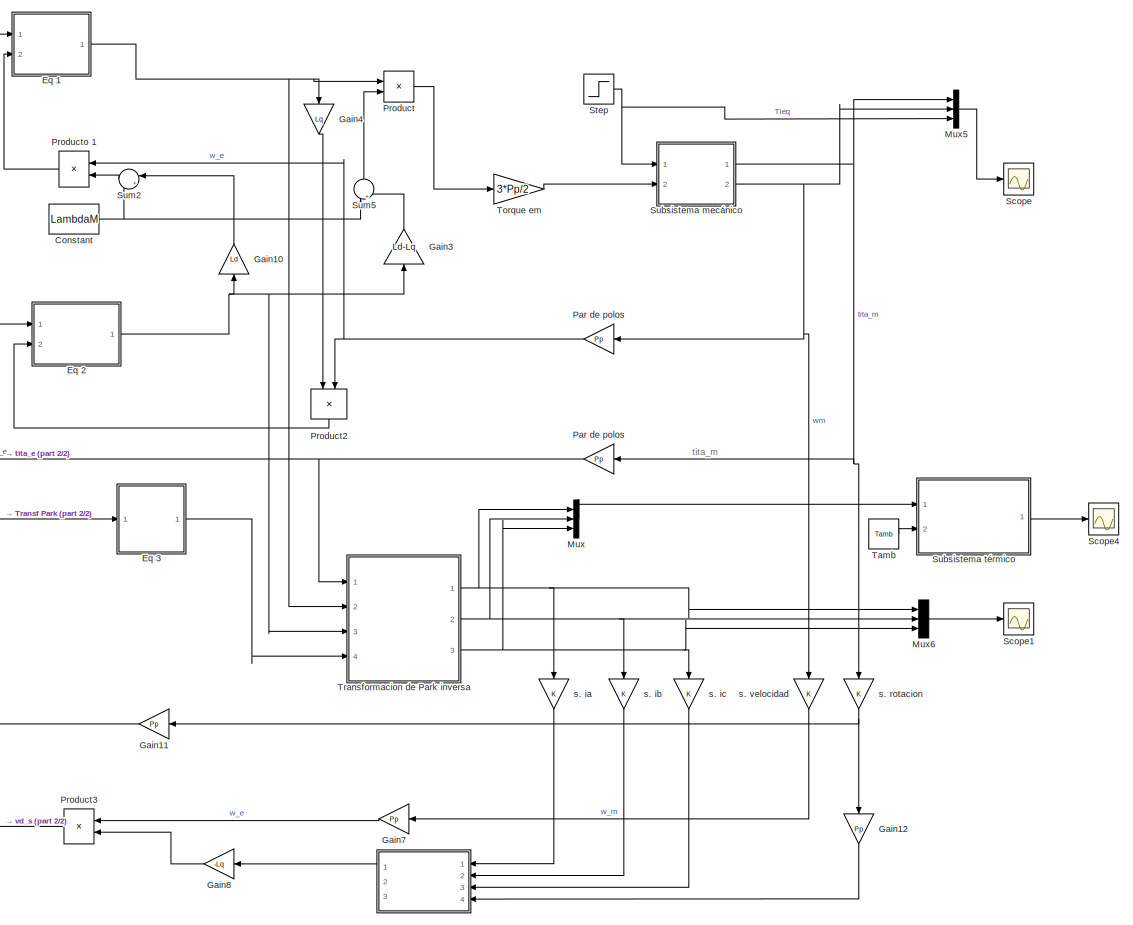
[diagram: root canvas - part 1/2, right side, full height]
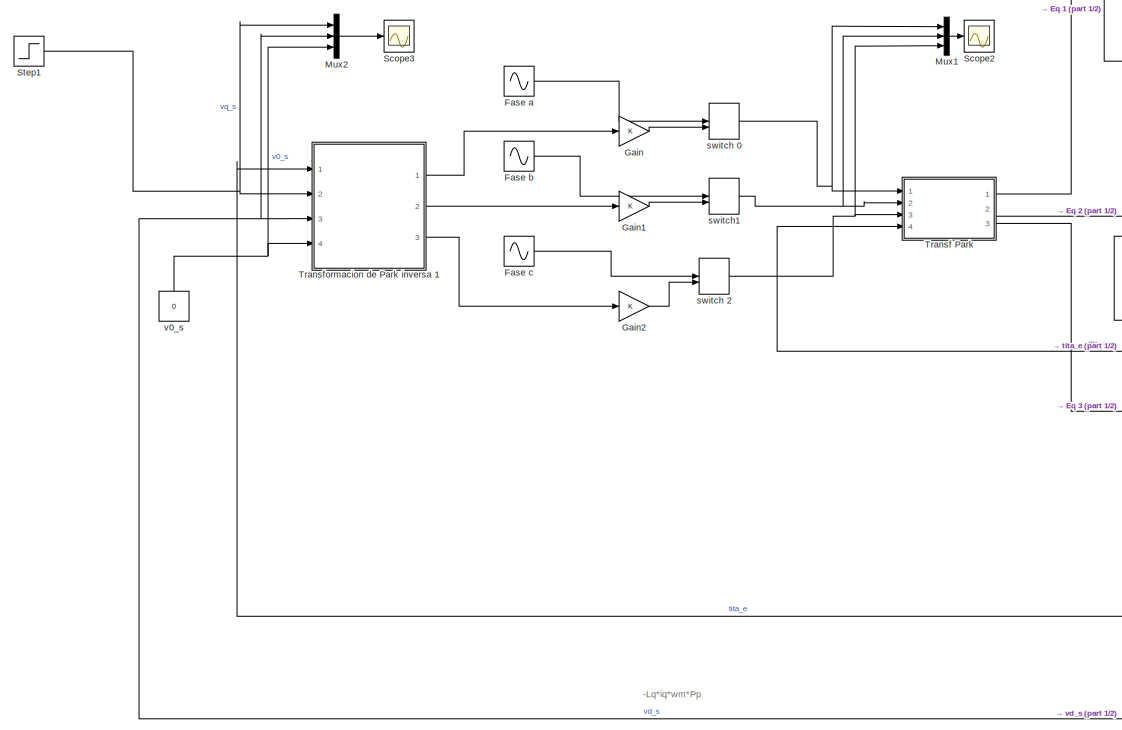
[diagram: root canvas - part 2/2, left side, full height]
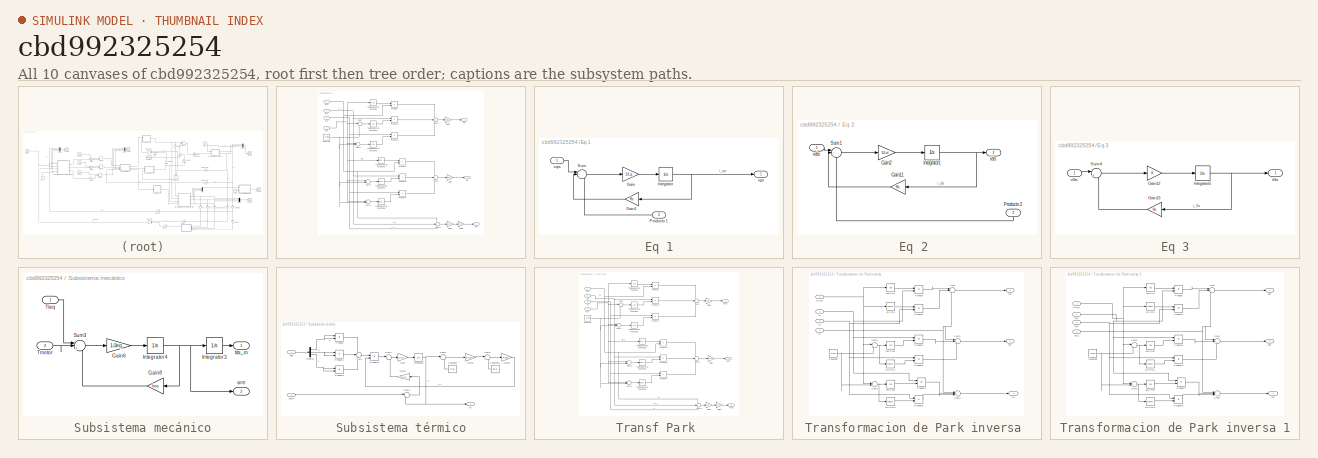
[diagram: thumbnail index - all 10 canvases of the model, root first then tree order]
MODEL slx_cbd992325254
KIND model
CONFIG AbsTol = auto
CONFIG EnableMultiTasking = off
CONFIG FixedStep = auto
CONFIG MaxStep = 1e-4
CONFIG MinStep = auto
CONFIG RelTol = 1e-3
CONFIG SampleTimeConstraint = Unconstrained
CONFIG Solver = VariableStepAuto
CONFIG SolverName = VariableStepAuto
CONFIG StartTime = 0.0
CONFIG StopTime = 2
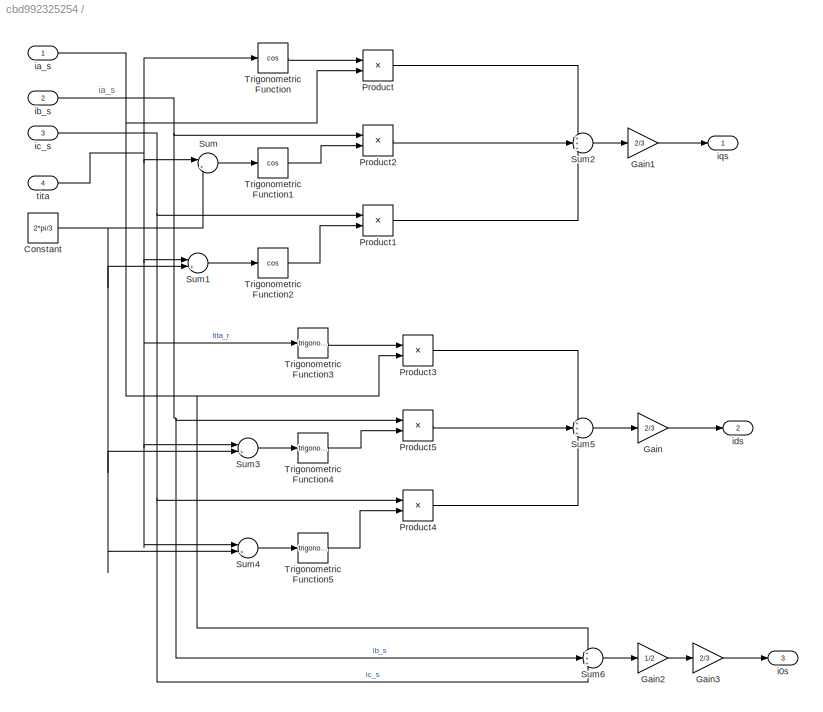
BLOCK [SubSystem]  
  Ports = [4, 3]
  RequestExecContextInheritance = off
  Variant = off
BLOCK [Constant]  /Constant
  Value = 2*pi/3
BLOCK [Gain]  /Gain
  Gain = 2/3
  OutDataTypeStr = Inherit: Inherit via internal rule
  ParamDataTypeStr = Inherit: Inherit via internal rule
  SaturateOnIntegerOverflow = off
BLOCK [Gain]  /Gain1
  Gain = 2/3
  OutDataTypeStr = Inherit: Inherit via internal rule
  ParamDataTypeStr = Inherit: Inherit via internal rule
  SaturateOnIntegerOverflow = off
BLOCK [Gain]  /Gain2
  Gain = 1/2
  OutDataTypeStr = Inherit: Inherit via internal rule
  ParamDataTypeStr = Inherit: Inherit via internal rule
  SaturateOnIntegerOverflow = off
BLOCK [Gain]  /Gain3
  Gain = 2/3
  OutDataTypeStr = Inherit: Inherit via internal rule
  ParamDataTypeStr = Inherit: Inherit via internal rule
  SaturateOnIntegerOverflow = off
BLOCK [Product]  /Product
  InputSameDT = off
  OutDataTypeStr = Inherit: Inherit via internal rule
  Ports = [2, 1]
  RndMeth = Floor
  SaturateOnIntegerOverflow = off
BLOCK [Product]  /Product1
  InputSameDT = off
  OutDataTypeStr = Inherit: Inherit via internal rule
  Ports = [2, 1]
  RndMeth = Floor
  SaturateOnIntegerOverflow = off
BLOCK [Product]  /Product2
  InputSameDT = off
  OutDataTypeStr = Inherit: Inherit via internal rule
  Ports = [2, 1]
  RndMeth = Floor
  SaturateOnIntegerOverflow = off
BLOCK [Product]  /Product3
  InputSameDT = off
  OutDataTypeStr = Inherit: Inherit via internal rule
  Ports = [2, 1]
  RndMeth = Floor
  SaturateOnIntegerOverflow = off
BLOCK [Product]  /Product4
  InputSameDT = off
  OutDataTypeStr = Inherit: Inherit via internal rule
  Ports = [2, 1]
  RndMeth = Floor
  SaturateOnIntegerOverflow = off
BLOCK [Product]  /Product5
  InputSameDT = off
  OutDataTypeStr = Inherit: Inherit via internal rule
  Ports = [2, 1]
  RndMeth = Floor
  SaturateOnIntegerOverflow = off
BLOCK [Sum]  /Sum
  IconShape = round
  InputSameDT = off
  Inputs = |+-
  OutDataTypeStr = Inherit: Inherit via internal rule
  Ports = [2, 1]
  SaturateOnIntegerOverflow = off
BLOCK [Sum]  /Sum1
  IconShape = round
  InputSameDT = off
  Inputs = |++
  OutDataTypeStr = Inherit: Inherit via internal rule
  Ports = [2, 1]
  SaturateOnIntegerOverflow = off
BLOCK [Sum]  /Sum2
  IconShape = round
  InputSameDT = off
  Inputs = +++
  OutDataTypeStr = Inherit: Inherit via internal rule
  Ports = [3, 1]
  SaturateOnIntegerOverflow = off
BLOCK [Sum]  /Sum3
  IconShape = round
  InputSameDT = off
  Inputs = |+-
  OutDataTypeStr = Inherit: Inherit via internal rule
  Ports = [2, 1]
  SaturateOnIntegerOverflow = off
BLOCK [Sum]  /Sum4
  IconShape = round
  InputSameDT = off
  Inputs = |++
  OutDataTypeStr = Inherit: Inherit via internal rule
  Ports = [2, 1]
  SaturateOnIntegerOverflow = off
BLOCK [Sum]  /Sum5
  IconShape = round
  InputSameDT = off
  Inputs = +++
  OutDataTypeStr = Inherit: Inherit via internal rule
  Ports = [3, 1]
  SaturateOnIntegerOverflow = off
BLOCK [Sum]  /Sum6
  IconShape = round
  InputSameDT = off
  Inputs = +++
  OutDataTypeStr = Inherit: Inherit via internal rule
  Ports = [3, 1]
  SaturateOnIntegerOverflow = off
BLOCK [Trigonometry]  /Trigonometric Function
  Operator = cos
  Ports = [1, 1]
BLOCK [Trigonometry]  /Trigonometric Function1
  Operator = cos
  Ports = [1, 1]
BLOCK [Trigonometry]  /Trigonometric Function2
  Operator = cos
  Ports = [1, 1]
BLOCK [Trigonometry]  /Trigonometric Function3
  Ports = [1, 1]
BLOCK [Trigonometry]  /Trigonometric Function4
  Ports = [1, 1]
BLOCK [Trigonometry]  /Trigonometric Function5
  Ports = [1, 1]
BLOCK [Outport]  /i0s 
  IconDisplay = Port number
  Port = 3
BLOCK [Inport]  /ia_s 
  IconDisplay = Port number
BLOCK [Inport]  /ib_s 
  IconDisplay = Port number
  Port = 2
BLOCK [Inport]  /ic_s 
  IconDisplay = Port number
  Port = 3
BLOCK [Outport]  /ids 
  IconDisplay = Port number
  Port = 2
BLOCK [Outport]  /iqs
  IconDisplay = Port number
BLOCK [Inport]  /tita 
  IconDisplay = Port number
  Port = 4
BLOCK [Constant] Constant
  Value = LambdaM
BLOCK [SubSystem] Eq 1
  Ports = [2, 1]
  RequestExecContextInheritance = off
  Variant = off
BLOCK [Gain] Eq 1/Gain
  Gain = 1/Lq
  OutDataTypeStr = Inherit: Inherit via internal rule
  ParamDataTypeStr = Inherit: Inherit via internal rule
  SaturateOnIntegerOverflow = off
BLOCK [Gain] Eq 1/Gain1
  Gain = Rs
  OutDataTypeStr = Inherit: Inherit via internal rule
  ParamDataTypeStr = Inherit: Inherit via internal rule
  SaturateOnIntegerOverflow = off
BLOCK [Integrator] Eq 1/Integrator
  Ports = [1, 1]
BLOCK [Inport] Eq 1/Producto 1 
  IconDisplay = Port number
  Port = 2
BLOCK [Sum] Eq 1/Sum
  IconShape = round
  InputSameDT = off
  Inputs = |+--
  OutDataTypeStr = Inherit: Inherit via internal rule
  Ports = [3, 1]
  SaturateOnIntegerOverflow = off
BLOCK [Outport] Eq 1/iqrs 
  IconDisplay = Port number
BLOCK [Inport] Eq 1/vqrs
  IconDisplay = Port number
BLOCK [SubSystem] Eq 2 
  Ports = [2, 1]
  RequestExecContextInheritance = off
  Variant = off
BLOCK [Gain] Eq 2 /Gain11
  Gain = Rs
  OutDataTypeStr = Inherit: Inherit via internal rule
  ParamDataTypeStr = Inherit: Inherit via internal rule
  SaturateOnIntegerOverflow = off
BLOCK [Gain] Eq 2 /Gain2
  Gain = 1/Ld
  OutDataTypeStr = Inherit: Inherit via internal rule
  ParamDataTypeStr = Inherit: Inherit via internal rule
  SaturateOnIntegerOverflow = off
BLOCK [Integrator] Eq 2 /Integrator1
  InitialCondition = 0.5
  Ports = [1, 1]
BLOCK [Inport] Eq 2 /Producto 2 
  IconDisplay = Port number
  Port = 2
BLOCK [Sum] Eq 2 /Sum1
  IconShape = round
  InputSameDT = off
  Inputs = |+-+
  OutDataTypeStr = Inherit: Inherit via internal rule
  Ports = [3, 1]
  SaturateOnIntegerOverflow = off
BLOCK [Outport] Eq 2 /idrs 
  IconDisplay = Port number
BLOCK [Inport] Eq 2 /vdrs 
  IconDisplay = Port number
BLOCK [SubSystem] Eq 3
  Ports = [1, 1]
  RequestExecContextInheritance = off
  Variant = off
BLOCK [Gain] Eq 3/Gain12
  OutDataTypeStr = Inherit: Inherit via internal rule
  ParamDataTypeStr = Inherit: Inherit via internal rule
  SaturateOnIntegerOverflow = off
BLOCK [Gain] Eq 3/Gain13
  Gain = Rs
  OutDataTypeStr = Inherit: Inherit via internal rule
  ParamDataTypeStr = Inherit: Inherit via internal rule
  SaturateOnIntegerOverflow = off
BLOCK [Integrator] Eq 3/Integrator5
  Ports = [1, 1]
BLOCK [Sum] Eq 3/Sum4
  IconShape = round
  InputSameDT = off
  Inputs = |++
  OutDataTypeStr = Inherit: Inherit via internal rule
  Ports = [2, 1]
  SaturateOnIntegerOverflow = off
BLOCK [Outport] Eq 3/i0rs 
  IconDisplay = Port number
BLOCK [Inport] Eq 3/v0rs 
  IconDisplay = Port number
BLOCK [Sin] Fase a
  Ports = [0, 1]
  SampleTime = 0
BLOCK [Sin] Fase b
  Ports = [0, 1]
  SampleTime = 0
BLOCK [Sin] Fase c
  Ports = [0, 1]
  SampleTime = 0
BLOCK [Gain] Gain
  OutDataTypeStr = Inherit: Inherit via internal rule
  ParamDataTypeStr = Inherit: Inherit via internal rule
  SaturateOnIntegerOverflow = off
BLOCK [Gain] Gain1
  OutDataTypeStr = Inherit: Inherit via internal rule
  ParamDataTypeStr = Inherit: Inherit via internal rule
  SaturateOnIntegerOverflow = off
BLOCK [Gain] Gain10
  Gain = Ld
  OutDataTypeStr = Inherit: Inherit via internal rule
  ParamDataTypeStr = Inherit: Inherit via internal rule
  SaturateOnIntegerOverflow = off
BLOCK [Gain] Gain11
  Gain = Pp
  OutDataTypeStr = Inherit: Inherit via internal rule
  ParamDataTypeStr = Inherit: Inherit via internal rule
  SaturateOnIntegerOverflow = off
BLOCK [Gain] Gain12
  Gain = Pp
  OutDataTypeStr = Inherit: Inherit via internal rule
  ParamDataTypeStr = Inherit: Inherit via internal rule
  SaturateOnIntegerOverflow = off
BLOCK [Gain] Gain2
  OutDataTypeStr = Inherit: Inherit via internal rule
  ParamDataTypeStr = Inherit: Inherit via internal rule
  SaturateOnIntegerOverflow = off
BLOCK [Gain] Gain3
  Gain = Ld-Lq
  OutDataTypeStr = Inherit: Inherit via internal rule
  ParamDataTypeStr = Inherit: Inherit via internal rule
  SaturateOnIntegerOverflow = off
BLOCK [Gain] Gain4
  Gain = Lq
  OutDataTypeStr = Inherit: Inherit via internal rule
  ParamDataTypeStr = Inherit: Inherit via internal rule
  SaturateOnIntegerOverflow = off
BLOCK [Gain] Gain7
  Gain = Pp
  OutDataTypeStr = Inherit: Inherit via internal rule
  ParamDataTypeStr = Inherit: Inherit via internal rule
  SaturateOnIntegerOverflow = off
BLOCK [Gain] Gain8
  Gain = -Lq
  OutDataTypeStr = Inherit: Inherit via internal rule
  ParamDataTypeStr = Inherit: Inherit via internal rule
  SaturateOnIntegerOverflow = off
BLOCK [Mux] Mux
  DisplayOption = bar
  Inputs = 3
  Ports = [3, 1]
BLOCK [Mux] Mux1
  DisplayOption = bar
  Inputs = 3
  Ports = [3, 1]
BLOCK [Mux] Mux2
  DisplayOption = bar
  Inputs = 3
  Ports = [3, 1]
BLOCK [Mux] Mux5
  DisplayOption = bar
  Inputs = 3
  Ports = [3, 1]
BLOCK [Mux] Mux6
  DisplayOption = bar
  Inputs = 3
  Ports = [3, 1]
BLOCK [Gain] Par de polos
  Gain = Pp
  OutDataTypeStr = Inherit: Inherit via internal rule
  ParamDataTypeStr = Inherit: Inherit via internal rule
  SaturateOnIntegerOverflow = off
BLOCK [Gain] Par de polos 
  Gain = Pp
  OutDataTypeStr = Inherit: Inherit via internal rule
  ParamDataTypeStr = Inherit: Inherit via internal rule
  SaturateOnIntegerOverflow = off
BLOCK [Product] Product
  InputSameDT = off
  OutDataTypeStr = Inherit: Inherit via internal rule
  Ports = [2, 1]
  RndMeth = Floor
  SaturateOnIntegerOverflow = off
BLOCK [Product] Product2
  InputSameDT = off
  OutDataTypeStr = Inherit: Inherit via internal rule
  Ports = [2, 1]
  RndMeth = Floor
  SaturateOnIntegerOverflow = off
BLOCK [Product] Product3
  InputSameDT = off
  OutDataTypeStr = Inherit: Inherit via internal rule
  Ports = [2, 1]
  RndMeth = Floor
  SaturateOnIntegerOverflow = off
BLOCK [Product] Producto 1
  InputSameDT = off
  OutDataTypeStr = Inherit: Inherit via internal rule
  Ports = [2, 1]
  RndMeth = Floor
  SaturateOnIntegerOverflow = off
BLOCK [Scope] Scope
  NumInputPorts = 1
  Ports = [1]
  ScopeSpecificationString = Simulink.scopes.TimeScopeBlockCfg('CurrentConfiguration', extmgr.ConfigurationSet(extmgr.Configuration('Core','General UI',true),extmgr.Configuration('Core','Source UI',true),extmgr.Configuration('Sources','WiredSimulink',true,'DataLoggingVariableName','ScopeData1'),extmgr.Configuration('Visuals','Time Domain',true,'SerializedDisplays',{struct('MinYLimReal','-73.85469','MaxYLimReal','663.26514','Y...<+1748ch>
BLOCK [Scope] Scope1
  NumInputPorts = 1
  Ports = [1]
  ScopeSpecificationString = Simulink.scopes.TimeScopeBlockCfg('CurrentConfiguration', extmgr.ConfigurationSet(extmgr.Configuration('Core','General UI',true),extmgr.Configuration('Core','Source UI',true),extmgr.Configuration('Sources','WiredSimulink',true,'DataLoggingVariableName','ScopeData2'),extmgr.Configuration('Visuals','Time Domain',true,'SerializedDisplays',{struct('MinYLimReal','-9.60927','MaxYLimReal','9.36646','YLab...<+1870ch>
BLOCK [Scope] Scope2
  NumInputPorts = 1
  Ports = [1]
  ScopeSpecificationString = Simulink.scopes.TimeScopeBlockCfg('CurrentConfiguration', extmgr.ConfigurationSet(extmgr.Configuration('Core','General UI',true),extmgr.Configuration('Core','Source UI',true),extmgr.Configuration('Sources','WiredSimulink',true,'DataLoggingVariableName','ScopeData3'),extmgr.Configuration('Visuals','Time Domain',true,'SerializedDisplays',{struct('MinYLimReal','-64.6041','MaxYLimReal','65.43463','YLa...<+1464ch>
BLOCK [Scope] Scope3
  NumInputPorts = 1
  Ports = [1]
  ScopeSpecificationString = Simulink.scopes.TimeScopeBlockCfg('CurrentConfiguration', extmgr.ConfigurationSet(extmgr.Configuration('Core','General UI',true),extmgr.Configuration('Core','Source UI',true),extmgr.Configuration('Sources','WiredSimulink',true,'DataLoggingVariableName','ScopeData4'),extmgr.Configuration('Visuals','Time Domain',true,'SerializedDisplays',{struct('MinYLimReal','-4.07993','MaxYLimReal','2.38829','YLab...<+1735ch>
BLOCK [Scope] Scope4
  NumInputPorts = 1
  Ports = [1]
  ScopeSpecificationString = Simulink.scopes.TimeScopeBlockCfg('CurrentConfiguration', extmgr.ConfigurationSet(extmgr.Configuration('Core','General UI',true),extmgr.Configuration('Core','Source UI',true),extmgr.Configuration('Sources','WiredSimulink',true),extmgr.Configuration('Visuals','Time Domain',true,'SerializedDisplays',{struct('MinYLimReal','-8.46468','MaxYLimReal','8.01481','YLabelReal','','MinYLimMag','0.00000','MaxY...<+1684ch>
BLOCK [Step] Step
  After = Tleq
  SampleTime = 0
BLOCK [Step] Step1
  After = 20
  SampleTime = 0
BLOCK [SubSystem] Subsistema mecánico
  Ports = [2, 2]
  RequestExecContextInheritance = off
  Variant = off
BLOCK [Gain] Subsistema mecánico/Gain6
  Gain = 1/Jeq
  OutDataTypeStr = Inherit: Inherit via internal rule
  ParamDataTypeStr = Inherit: Inherit via internal rule
  SaturateOnIntegerOverflow = off
BLOCK [Gain] Subsistema mecánico/Gain8
  Gain = beq
  OutDataTypeStr = Inherit: Inherit via internal rule
  ParamDataTypeStr = Inherit: Inherit via internal rule
  SaturateOnIntegerOverflow = off
BLOCK [Integrator] Subsistema mecánico/Integrator3
  Ports = [1, 1]
BLOCK [Integrator] Subsistema mecánico/Integrator4
  Ports = [1, 1]
BLOCK [Sum] Subsistema mecánico/Sum3
  IconShape = round
  InputSameDT = off
  Inputs = |-+-
  OutDataTypeStr = Inherit: Inherit via internal rule
  Ports = [3, 1]
  SaturateOnIntegerOverflow = off
BLOCK [Inport] Subsistema mecánico/Tleq 
  IconDisplay = Port number
BLOCK [Inport] Subsistema mecánico/Tmotor 
  IconDisplay = Port number
  Port = 2
BLOCK [Outport] Subsistema mecánico/tita_m 
  IconDisplay = Port number
BLOCK [Outport] Subsistema mecánico/wm 
  IconDisplay = Port number
  Port = 2
BLOCK [SubSystem] Subsistema térmico
  Ports = [2, 1]
  RequestExecContextInheritance = off
  Variant = off
BLOCK [Constant] Subsistema térmico/Constant
  Value = Tsref
BLOCK [Constant] Subsistema térmico/Constant1
  Value = Rsref
BLOCK [Demux] Subsistema térmico/Demux
  DisplayOption = bar
  Outputs = 3
  Ports = [1, 3]
BLOCK [Gain] Subsistema térmico/Gain
  Gain = 1/Cts
  OutDataTypeStr = Inherit: Inherit via internal rule
  ParamDataTypeStr = Inherit: Inherit via internal rule
  SaturateOnIntegerOverflow = off
BLOCK [Gain] Subsistema térmico/Gain1
  Gain = 1/Rts_amb
  OutDataTypeStr = Inherit: Inherit via internal rule
  ParamDataTypeStr = Inherit: Inherit via internal rule
  SaturateOnIntegerOverflow = off
BLOCK [Gain] Subsistema térmico/Gain2
  Gain = alfa_cu
  OutDataTypeStr = Inherit: Inherit via internal rule
  ParamDataTypeStr = Inherit: Inherit via internal rule
  SaturateOnIntegerOverflow = off
BLOCK [Gain] Subsistema térmico/Gain3
  Gain = Rsref
  OutDataTypeStr = Inherit: Inherit via internal rule
  ParamDataTypeStr = Inherit: Inherit via internal rule
  SaturateOnIntegerOverflow = off
BLOCK [Integrator] Subsistema térmico/Integrator
  Ports = [1, 1]
BLOCK [Product] Subsistema térmico/Product
  InputSameDT = off
  OutDataTypeStr = Inherit: Inherit via internal rule
  Ports = [2, 1]
  RndMeth = Floor
  SaturateOnIntegerOverflow = off
BLOCK [Product] Subsistema térmico/Product1
  InputSameDT = off
  OutDataTypeStr = Inherit: Inherit via internal rule
  Ports = [2, 1]
  RndMeth = Floor
  SaturateOnIntegerOverflow = off
BLOCK [Product] Subsistema térmico/Product2
  InputSameDT = off
  OutDataTypeStr = Inherit: Inherit via internal rule
  Ports = [2, 1]
  RndMeth = Floor
  SaturateOnIntegerOverflow = off
BLOCK [Product] Subsistema térmico/Product3
  InputSameDT = off
  OutDataTypeStr = Inherit: Inherit via internal rule
  Ports = [2, 1]
  RndMeth = Floor
  SaturateOnIntegerOverflow = off
BLOCK [Sum] Subsistema térmico/Sum
  IconShape = round
  InputSameDT = off
  Inputs = +++
  OutDataTypeStr = Inherit: Inherit via internal rule
  Ports = [3, 1]
  SaturateOnIntegerOverflow = off
BLOCK [Sum] Subsistema térmico/Sum1
  IconShape = round
  InputSameDT = off
  Inputs = |+-
  OutDataTypeStr = Inherit: Inherit via internal rule
  Ports = [2, 1]
  SaturateOnIntegerOverflow = off
BLOCK [Sum] Subsistema térmico/Sum2
  IconShape = round
  InputSameDT = off
  Inputs = |+-
  OutDataTypeStr = Inherit: Inherit via internal rule
  Ports = [2, 1]
  SaturateOnIntegerOverflow = off
BLOCK [Sum] Subsistema térmico/Sum3
  IconShape = round
  InputSameDT = off
  Inputs = |++
  OutDataTypeStr = Inherit: Inherit via internal rule
  Ports = [2, 1]
  SaturateOnIntegerOverflow = off
BLOCK [Sum] Subsistema térmico/Sum4
  IconShape = round
  InputSameDT = off
  Inputs = |-+
  OutDataTypeStr = Inherit: Inherit via internal rule
  Ports = [2, 1]
  SaturateOnIntegerOverflow = off
BLOCK [Inport] Subsistema térmico/Tamb 
  IconDisplay = Port number
  Port = 2
BLOCK [Outport] Subsistema térmico/Ts
  IconDisplay = Port number
BLOCK [Inport] Subsistema térmico/iabc
  IconDisplay = Port number
BLOCK [Sum] Sum2
  IconShape = round
  InputSameDT = off
  Inputs = |++
  OutDataTypeStr = Inherit: Inherit via internal rule
  Ports = [2, 1]
  SaturateOnIntegerOverflow = off
BLOCK [Sum] Sum5
  IconShape = round
  InputSameDT = off
  Inputs = |++
  OutDataTypeStr = Inherit: Inherit via internal rule
  Ports = [2, 1]
  SaturateOnIntegerOverflow = off
BLOCK [Constant] Tamb 
  Value = Tamb
BLOCK [Gain] Torque em 
  Gain = 3*Pp/2
  OutDataTypeStr = Inherit: Inherit via internal rule
  ParamDataTypeStr = Inherit: Inherit via internal rule
  SaturateOnIntegerOverflow = off
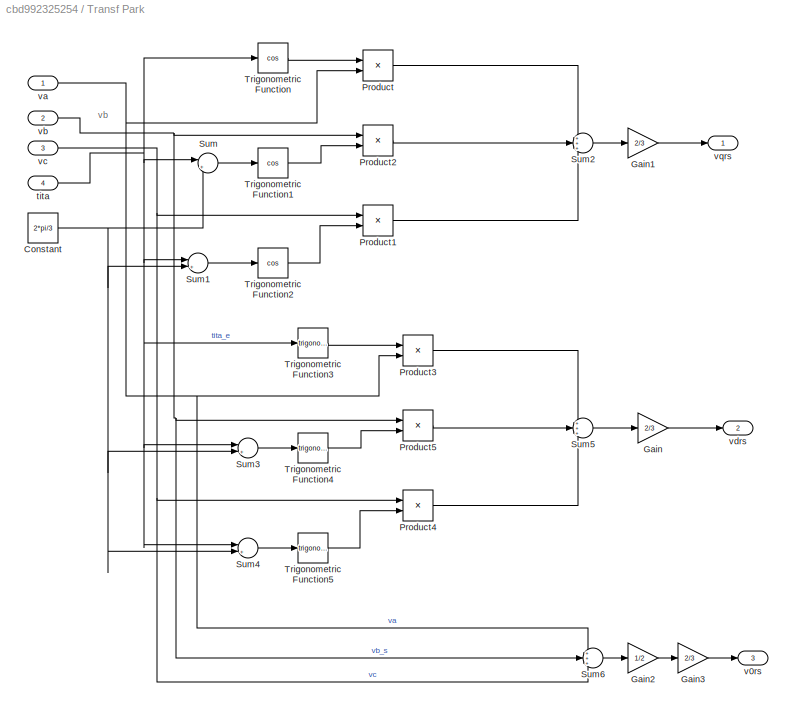
BLOCK [SubSystem] Transf Park 
  Ports = [4, 3]
  RequestExecContextInheritance = off
  Variant = off
BLOCK [Constant] Transf Park /Constant
  Value = 2*pi/3
BLOCK [Gain] Transf Park /Gain
  Gain = 2/3
  OutDataTypeStr = Inherit: Inherit via internal rule
  ParamDataTypeStr = Inherit: Inherit via internal rule
  SaturateOnIntegerOverflow = off
BLOCK [Gain] Transf Park /Gain1
  Gain = 2/3
  OutDataTypeStr = Inherit: Inherit via internal rule
  ParamDataTypeStr = Inherit: Inherit via internal rule
  SaturateOnIntegerOverflow = off
BLOCK [Gain] Transf Park /Gain2
  Gain = 1/2
  OutDataTypeStr = Inherit: Inherit via internal rule
  ParamDataTypeStr = Inherit: Inherit via internal rule
  SaturateOnIntegerOverflow = off
BLOCK [Gain] Transf Park /Gain3
  Gain = 2/3
  OutDataTypeStr = Inherit: Inherit via internal rule
  ParamDataTypeStr = Inherit: Inherit via internal rule
  SaturateOnIntegerOverflow = off
BLOCK [Product] Transf Park /Product
  InputSameDT = off
  OutDataTypeStr = Inherit: Inherit via internal rule
  Ports = [2, 1]
  RndMeth = Floor
  SaturateOnIntegerOverflow = off
BLOCK [Product] Transf Park /Product1
  InputSameDT = off
  OutDataTypeStr = Inherit: Inherit via internal rule
  Ports = [2, 1]
  RndMeth = Floor
  SaturateOnIntegerOverflow = off
BLOCK [Product] Transf Park /Product2
  InputSameDT = off
  OutDataTypeStr = Inherit: Inherit via internal rule
  Ports = [2, 1]
  RndMeth = Floor
  SaturateOnIntegerOverflow = off
BLOCK [Product] Transf Park /Product3
  InputSameDT = off
  OutDataTypeStr = Inherit: Inherit via internal rule
  Ports = [2, 1]
  RndMeth = Floor
  SaturateOnIntegerOverflow = off
BLOCK [Product] Transf Park /Product4
  InputSameDT = off
  OutDataTypeStr = Inherit: Inherit via internal rule
  Ports = [2, 1]
  RndMeth = Floor
  SaturateOnIntegerOverflow = off
BLOCK [Product] Transf Park /Product5
  InputSameDT = off
  OutDataTypeStr = Inherit: Inherit via internal rule
  Ports = [2, 1]
  RndMeth = Floor
  SaturateOnIntegerOverflow = off
BLOCK [Sum] Transf Park /Sum
  IconShape = round
  InputSameDT = off
  Inputs = |+-
  OutDataTypeStr = Inherit: Inherit via internal rule
  Ports = [2, 1]
  SaturateOnIntegerOverflow = off
BLOCK [Sum] Transf Park /Sum1
  IconShape = round
  InputSameDT = off
  Inputs = |++
  OutDataTypeStr = Inherit: Inherit via internal rule
  Ports = [2, 1]
  SaturateOnIntegerOverflow = off
BLOCK [Sum] Transf Park /Sum2
  IconShape = round
  InputSameDT = off
  Inputs = +++
  OutDataTypeStr = Inherit: Inherit via internal rule
  Ports = [3, 1]
  SaturateOnIntegerOverflow = off
BLOCK [Sum] Transf Park /Sum3
  IconShape = round
  InputSameDT = off
  Inputs = |+-
  OutDataTypeStr = Inherit: Inherit via internal rule
  Ports = [2, 1]
  SaturateOnIntegerOverflow = off
BLOCK [Sum] Transf Park /Sum4
  IconShape = round
  InputSameDT = off
  Inputs = |++
  OutDataTypeStr = Inherit: Inherit via internal rule
  Ports = [2, 1]
  SaturateOnIntegerOverflow = off
BLOCK [Sum] Transf Park /Sum5
  IconShape = round
  InputSameDT = off
  Inputs = +++
  OutDataTypeStr = Inherit: Inherit via internal rule
  Ports = [3, 1]
  SaturateOnIntegerOverflow = off
BLOCK [Sum] Transf Park /Sum6
  IconShape = round
  InputSameDT = off
  Inputs = +++
  OutDataTypeStr = Inherit: Inherit via internal rule
  Ports = [3, 1]
  SaturateOnIntegerOverflow = off
BLOCK [Trigonometry] Transf Park /Trigonometric Function
  Operator = cos
  Ports = [1, 1]
BLOCK [Trigonometry] Transf Park /Trigonometric Function1
  Operator = cos
  Ports = [1, 1]
BLOCK [Trigonometry] Transf Park /Trigonometric Function2
  Operator = cos
  Ports = [1, 1]
BLOCK [Trigonometry] Transf Park /Trigonometric Function3
  Ports = [1, 1]
BLOCK [Trigonometry] Transf Park /Trigonometric Function4
  Ports = [1, 1]
BLOCK [Trigonometry] Transf Park /Trigonometric Function5
  Ports = [1, 1]
BLOCK [Inport] Transf Park /tita
  IconDisplay = Port number
  Port = 4
BLOCK [Outport] Transf Park /v0rs 
  IconDisplay = Port number
  Port = 3
BLOCK [Inport] Transf Park /va 
  IconDisplay = Port number
BLOCK [Inport] Transf Park /vb
  IconDisplay = Port number
  Port = 2
BLOCK [Inport] Transf Park /vc
  IconDisplay = Port number
  Port = 3
BLOCK [Outport] Transf Park /vdrs 
  IconDisplay = Port number
  Port = 2
BLOCK [Outport] Transf Park /vqrs
  IconDisplay = Port number
BLOCK [SubSystem] Transformacion de Park inversa 
  Ports = [4, 3]
  RequestExecContextInheritance = off
  Variant = off
BLOCK [Constant] Transformacion de Park inversa /Constant
  Value = 2*pi/3
BLOCK [Product] Transformacion de Park inversa /Product
  InputSameDT = off
  OutDataTypeStr = Inherit: Inherit via internal rule
  Ports = [2, 1]
  RndMeth = Floor
  SaturateOnIntegerOverflow = off
BLOCK [Product] Transformacion de Park inversa /Product1
  InputSameDT = off
  OutDataTypeStr = Inherit: Inherit via internal rule
  Ports = [2, 1]
  RndMeth = Floor
  SaturateOnIntegerOverflow = off
BLOCK [Product] Transformacion de Park inversa /Product2
  InputSameDT = off
  OutDataTypeStr = Inherit: Inherit via internal rule
  Ports = [2, 1]
  RndMeth = Floor
  SaturateOnIntegerOverflow = off
BLOCK [Product] Transformacion de Park inversa /Product3
  InputSameDT = off
  OutDataTypeStr = Inherit: Inherit via internal rule
  Ports = [2, 1]
  RndMeth = Floor
  SaturateOnIntegerOverflow = off
BLOCK [Product] Transformacion de Park inversa /Product4
  InputSameDT = off
  OutDataTypeStr = Inherit: Inherit via internal rule
  Ports = [2, 1]
  RndMeth = Floor
  SaturateOnIntegerOverflow = off
BLOCK [Product] Transformacion de Park inversa /Product5
  InputSameDT = off
  OutDataTypeStr = Inherit: Inherit via internal rule
  Ports = [2, 1]
  RndMeth = Floor
  SaturateOnIntegerOverflow = off
BLOCK [Sum] Transformacion de Park inversa /Sum
  IconShape = round
  InputSameDT = off
  Inputs = |+++
  OutDataTypeStr = Inherit: Inherit via internal rule
  Ports = [3, 1]
  SaturateOnIntegerOverflow = off
BLOCK [Sum] Transformacion de Park inversa /Sum1
  IconShape = round
  InputSameDT = off
  Inputs = |+++
  OutDataTypeStr = Inherit: Inherit via internal rule
  Ports = [3, 1]
  SaturateOnIntegerOverflow = off
BLOCK [Sum] Transformacion de Park inversa /Sum2
  IconShape = round
  InputSameDT = off
  Inputs = |+-
  OutDataTypeStr = Inherit: Inherit via internal rule
  Ports = [2, 1]
  SaturateOnIntegerOverflow = off
BLOCK [Sum] Transformacion de Park inversa /Sum3
  IconShape = round
  InputSameDT = off
  Inputs = |++
  OutDataTypeStr = Inherit: Inherit via internal rule
  Ports = [2, 1]
  SaturateOnIntegerOverflow = off
BLOCK [Sum] Transformacion de Park inversa /Sum4
  IconShape = round
  InputSameDT = off
  Inputs = |+++
  OutDataTypeStr = Inherit: Inherit via internal rule
  Ports = [3, 1]
  SaturateOnIntegerOverflow = off
BLOCK [Trigonometry] Transformacion de Park inversa /cos tita
  Operator = cos
  Ports = [1, 1]
BLOCK [Trigonometry] Transformacion de Park inversa /cos tita1
  Operator = cos
  Ports = [1, 1]
BLOCK [Trigonometry] Transformacion de Park inversa /cos tita2
  Operator = cos
  Ports = [1, 1]
BLOCK [Inport] Transformacion de Park inversa /i0
  IconDisplay = Port number
  Port = 4
BLOCK [Outport] Transformacion de Park inversa /ias
  IconDisplay = Port number
BLOCK [Outport] Transformacion de Park inversa /ibs
  IconDisplay = Port number
  Port = 2
BLOCK [Outport] Transformacion de Park inversa /ics 
  IconDisplay = Port number
  Port = 3
BLOCK [Inport] Transformacion de Park inversa /id
  IconDisplay = Port number
  Port = 3
BLOCK [Inport] Transformacion de Park inversa /iq
  IconDisplay = Port number
  Port = 2
BLOCK [Trigonometry] Transformacion de Park inversa /sin tita 
  Ports = [1, 1]
BLOCK [Trigonometry] Transformacion de Park inversa /sin tita 1
  Ports = [1, 1]
BLOCK [Trigonometry] Transformacion de Park inversa /sin tita 2
  Ports = [1, 1]
BLOCK [Inport] Transformacion de Park inversa /tita_e
  IconDisplay = Port number
BLOCK [SubSystem] Transformacion de Park inversa 1
  Ports = [4, 3]
  RequestExecContextInheritance = off
  Variant = off
BLOCK [Constant] Transformacion de Park inversa 1/Constant
  Value = 2*pi/3
BLOCK [Product] Transformacion de Park inversa 1/Product
  InputSameDT = off
  OutDataTypeStr = Inherit: Inherit via internal rule
  Ports = [2, 1]
  RndMeth = Floor
  SaturateOnIntegerOverflow = off
BLOCK [Product] Transformacion de Park inversa 1/Product1
  InputSameDT = off
  OutDataTypeStr = Inherit: Inherit via internal rule
  Ports = [2, 1]
  RndMeth = Floor
  SaturateOnIntegerOverflow = off
BLOCK [Product] Transformacion de Park inversa 1/Product2
  InputSameDT = off
  OutDataTypeStr = Inherit: Inherit via internal rule
  Ports = [2, 1]
  RndMeth = Floor
  SaturateOnIntegerOverflow = off
BLOCK [Product] Transformacion de Park inversa 1/Product3
  InputSameDT = off
  OutDataTypeStr = Inherit: Inherit via internal rule
  Ports = [2, 1]
  RndMeth = Floor
  SaturateOnIntegerOverflow = off
BLOCK [Product] Transformacion de Park inversa 1/Product4
  InputSameDT = off
  OutDataTypeStr = Inherit: Inherit via internal rule
  Ports = [2, 1]
  RndMeth = Floor
  SaturateOnIntegerOverflow = off
BLOCK [Product] Transformacion de Park inversa 1/Product5
  InputSameDT = off
  OutDataTypeStr = Inherit: Inherit via internal rule
  Ports = [2, 1]
  RndMeth = Floor
  SaturateOnIntegerOverflow = off
BLOCK [Sum] Transformacion de Park inversa 1/Sum
  IconShape = round
  InputSameDT = off
  Inputs = |+++
  OutDataTypeStr = Inherit: Inherit via internal rule
  Ports = [3, 1]
  SaturateOnIntegerOverflow = off
BLOCK [Sum] Transformacion de Park inversa 1/Sum1
  IconShape = round
  InputSameDT = off
  Inputs = |+++
  OutDataTypeStr = Inherit: Inherit via internal rule
  Ports = [3, 1]
  SaturateOnIntegerOverflow = off
BLOCK [Sum] Transformacion de Park inversa 1/Sum2
  IconShape = round
  InputSameDT = off
  Inputs = |+-
  OutDataTypeStr = Inherit: Inherit via internal rule
  Ports = [2, 1]
  SaturateOnIntegerOverflow = off
BLOCK [Sum] Transformacion de Park inversa 1/Sum3
  IconShape = round
  InputSameDT = off
  Inputs = |++
  OutDataTypeStr = Inherit: Inherit via internal rule
  Ports = [2, 1]
  SaturateOnIntegerOverflow = off
BLOCK [Sum] Transformacion de Park inversa 1/Sum4
  IconShape = round
  InputSameDT = off
  Inputs = |+++
  OutDataTypeStr = Inherit: Inherit via internal rule
  Ports = [3, 1]
  SaturateOnIntegerOverflow = off
BLOCK [Trigonometry] Transformacion de Park inversa 1/cos tita
  Operator = cos
  Ports = [1, 1]
BLOCK [Trigonometry] Transformacion de Park inversa 1/cos tita1
  Operator = cos
  Ports = [1, 1]
BLOCK [Trigonometry] Transformacion de Park inversa 1/cos tita2
  Operator = cos
  Ports = [1, 1]
BLOCK [Trigonometry] Transformacion de Park inversa 1/sin tita 
  Ports = [1, 1]
BLOCK [Trigonometry] Transformacion de Park inversa 1/sin tita 1
  Ports = [1, 1]
BLOCK [Trigonometry] Transformacion de Park inversa 1/sin tita 2
  Ports = [1, 1]
BLOCK [Inport] Transformacion de Park inversa 1/tita_e
  IconDisplay = Port number
BLOCK [Inport] Transformacion de Park inversa 1/v0_S 
  IconDisplay = Port number
  Port = 4
BLOCK [Outport] Transformacion de Park inversa 1/vas
  IconDisplay = Port number
BLOCK [Outport] Transformacion de Park inversa 1/vbs
  IconDisplay = Port number
  Port = 2
BLOCK [Outport] Transformacion de Park inversa 1/vcs 
  IconDisplay = Port number
  Port = 3
BLOCK [Inport] Transformacion de Park inversa 1/vd_s
  IconDisplay = Port number
  Port = 3
BLOCK [Inport] Transformacion de Park inversa 1/vq_s
  IconDisplay = Port number
  Port = 2
BLOCK [Gain] s. ia
  OutDataTypeStr = Inherit: Inherit via internal rule
  ParamDataTypeStr = Inherit: Inherit via internal rule
  SaturateOnIntegerOverflow = off
BLOCK [Gain] s. ib
  OutDataTypeStr = Inherit: Inherit via internal rule
  ParamDataTypeStr = Inherit: Inherit via internal rule
  SaturateOnIntegerOverflow = off
BLOCK [Gain] s. ic 
  OutDataTypeStr = Inherit: Inherit via internal rule
  ParamDataTypeStr = Inherit: Inherit via internal rule
  SaturateOnIntegerOverflow = off
BLOCK [Gain] s. rotacion
  OutDataTypeStr = Inherit: Inherit via internal rule
  ParamDataTypeStr = Inherit: Inherit via internal rule
  SaturateOnIntegerOverflow = off
BLOCK [Gain] s. velocidad
  OutDataTypeStr = Inherit: Inherit via internal rule
  ParamDataTypeStr = Inherit: Inherit via internal rule
  SaturateOnIntegerOverflow = off
BLOCK [ManualSwitch] switch 0
  CurrentSetting = 0
BLOCK [ManualSwitch] switch 2 
  CurrentSetting = 0
BLOCK [ManualSwitch] switch1
  CurrentSetting = 0
BLOCK [Constant] v0_s
  Value = 0
ANNOTATION (root): -Lq*iq*wm*Pp
ANNOTATION (root): tita_m
ANNOTATION  : ia_s
ANNOTATION Subsistema térmico: ib
ANNOTATION Transf Park : vb
NET  /Constant:1 ->  /Sum1:2,  /Sum3:2,  /Sum4:2,  /Sum:2
LINE  /Gain1:1 ->  /iqs:1
LINE  /Gain2:1 ->  /Gain3:1
LINE  /Gain3:1 ->  /i0s :1
LINE  /Gain:1 ->  /ids :1
LINE  /Product1:1 ->  /Sum2:3
LINE  /Product2:1 ->  /Sum2:2
LINE  /Product3:1 ->  /Sum5:1
LINE  /Product4:1 ->  /Sum5:3
LINE  /Product5:1 ->  /Sum5:2
LINE  /Product:1 ->  /Sum2:1
LINE  /Sum1:1 ->  /Trigonometric Function2:1
LINE  /Sum2:1 ->  /Gain1:1
LINE  /Sum3:1 ->  /Trigonometric Function4:1
LINE  /Sum4:1 ->  /Trigonometric Function5:1
LINE  /Sum5:1 ->  /Gain:1
LINE  /Sum6:1 ->  /Gain2:1
LINE  /Sum:1 ->  /Trigonometric Function1:1
LINE  /Trigonometric Function1:1 ->  /Product2:2
LINE  /Trigonometric Function2:1 ->  /Product1:2
LINE  /Trigonometric Function3:1 ->  /Product3:1
LINE  /Trigonometric Function4:1 ->  /Product5:2
LINE  /Trigonometric Function5:1 ->  /Product4:2
LINE  /Trigonometric Function:1 ->  /Product:1
NET  /ia_s :1 ->  /Product3:2,  /Product:2,  /Sum6:1
NET  /ib_s :1 ->  /Product2:1,  /Product5:1,  /Sum6:2
NET  /ic_s :1 ->  /Product1:1,  /Product4:1,  /Sum6:3
NET  /tita :1 ->  /Sum1:1,  /Sum3:1,  /Sum4:1,  /Sum:1,  /Trigonometric Function3:1,  /Trigonometric Function:1
LINE  :1 -> Gain8:1
NET Constant:1 -> Sum2:2, Sum5:1
LINE Eq 1/Gain1:1 -> Eq 1/Sum:2
LINE Eq 1/Gain:1 -> Eq 1/Integrator:1
NET Eq 1/Integrator:1 -> Eq 1/Gain1:1, Eq 1/iqrs :1
LINE Eq 1/Producto 1 :1 -> Eq 1/Sum:3
LINE Eq 1/Sum:1 -> Eq 1/Gain:1
LINE Eq 1/vqrs:1 -> Eq 1/Sum:1
NET Eq 1:1 -> Gain4:1, Product:1, Transformacion de Park inversa :2
LINE Eq 2 /Gain11:1 -> Eq 2 /Sum1:2
LINE Eq 2 /Gain2:1 -> Eq 2 /Integrator1:1
NET Eq 2 /Integrator1:1 -> Eq 2 /Gain11:1, Eq 2 /idrs :1
LINE Eq 2 /Producto 2 :1 -> Eq 2 /Sum1:3
LINE Eq 2 /Sum1:1 -> Eq 2 /Gain2:1
LINE Eq 2 /vdrs :1 -> Eq 2 /Sum1:1
NET Eq 2 :1 -> Gain10:1, Gain3:1, Transformacion de Park inversa :3
LINE Eq 3/Gain12:1 -> Eq 3/Integrator5:1
LINE Eq 3/Gain13:1 -> Eq 3/Sum4:2
NET Eq 3/Integrator5:1 -> Eq 3/Gain13:1, Eq 3/i0rs :1
LINE Eq 3/Sum4:1 -> Eq 3/Gain12:1
LINE Eq 3/v0rs :1 -> Eq 3/Sum4:1
LINE Eq 3:1 -> Transformacion de Park inversa :4
LINE Fase a:1 -> switch 0:1
LINE Fase b:1 -> switch1:1
LINE Fase c:1 -> switch 2 :1
LINE Gain10:1 -> Sum2:1
LINE Gain11:1 -> Transformacion de Park inversa 1:1
LINE Gain12:1 ->  :4
LINE Gain1:1 -> switch1:2
LINE Gain2:1 -> switch 2 :2
LINE Gain3:1 -> Sum5:2
LINE Gain4:1 -> Product2:1
LINE Gain7:1 -> Product3:1
LINE Gain8:1 -> Product3:2
LINE Gain:1 -> switch 0:2
LINE Mux1:1 -> Scope2:1
LINE Mux2:1 -> Scope3:1
LINE Mux5:1 -> Scope:1
LINE Mux6:1 -> Scope1:1
LINE Mux:1 -> Subsistema térmico:1
NET Par de polos :1 -> Transf Park :4, Transformacion de Park inversa :1
NET Par de polos:1 -> Product2:2, Producto 1:1
LINE Product2:1 -> Eq 2 :2
NET Product3:1 -> Mux2:2, Transformacion de Park inversa 1:3
LINE Product:1 -> Torque em :1
LINE Producto 1:1 -> Eq 1:2
NET Step1:1 -> Mux2:1, Transformacion de Park inversa 1:2
NET Step:1 -> Mux5:3, Subsistema mecánico:1
LINE Subsistema mecánico/Gain6:1 -> Subsistema mecánico/Integrator4:1
LINE Subsistema mecánico/Gain8:1 -> Subsistema mecánico/Sum3:3
LINE Subsistema mecánico/Integrator3:1 -> Subsistema mecánico/tita_m :1
NET Subsistema mecánico/Integrator4:1 -> Subsistema mecánico/Gain8:1, Subsistema mecánico/Integrator3:1, Subsistema mecánico/wm :1
LINE Subsistema mecánico/Sum3:1 -> Subsistema mecánico/Gain6:1
LINE Subsistema mecánico/Tleq :1 -> Subsistema mecánico/Sum3:1
LINE Subsistema mecánico/Tmotor :1 -> Subsistema mecánico/Sum3:2
NET Subsistema mecánico:1 -> Mux5:1, Par de polos :1, s. rotacion:1
NET Subsistema mecánico:2 -> Mux5:2, Par de polos:1, s. velocidad:1
LINE Subsistema térmico/Constant1:1 -> Subsistema térmico/Sum3:2
LINE Subsistema térmico/Constant:1 -> Subsistema térmico/Sum2:2
NET Subsistema térmico/Demux:1 -> Subsistema térmico/Product:1, Subsistema térmico/Product:2
NET Subsistema térmico/Demux:2 -> Subsistema térmico/Product1:1, Subsistema térmico/Product1:2
NET Subsistema térmico/Demux:3 -> Subsistema térmico/Product2:1, Subsistema térmico/Product2:2
LINE Subsistema térmico/Gain1:1 -> Subsistema térmico/Sum1:2
LINE Subsistema térmico/Gain2:1 -> Subsistema térmico/Sum3:1
LINE Subsistema térmico/Gain3:1 -> Subsistema térmico/Product3:2
LINE Subsistema térmico/Gain:1 -> Subsistema térmico/Integrator:1
NET Subsistema térmico/Integrator:1 -> Subsistema térmico/Sum2:1, Subsistema térmico/Sum4:2, Subsistema térmico/Ts:1
LINE Subsistema térmico/Product1:1 -> Subsistema térmico/Sum:2
LINE Subsistema térmico/Product2:1 -> Subsistema térmico/Sum:3
LINE Subsistema térmico/Product3:1 -> Subsistema térmico/Sum1:1
LINE Subsistema térmico/Product:1 -> Subsistema térmico/Sum:1
LINE Subsistema térmico/Sum1:1 -> Subsistema térmico/Gain:1
LINE Subsistema térmico/Sum2:1 -> Subsistema térmico/Gain2:1
LINE Subsistema térmico/Sum3:1 -> Subsistema térmico/Gain3:1
LINE Subsistema térmico/Sum4:1 -> Subsistema térmico/Gain1:1
LINE Subsistema térmico/Sum:1 -> Subsistema térmico/Product3:1
LINE Subsistema térmico/Tamb :1 -> Subsistema térmico/Sum4:1
LINE Subsistema térmico/iabc:1 -> Subsistema térmico/Demux:1
LINE Subsistema térmico:1 -> Scope4:1
LINE Sum2:1 -> Producto 1:2
LINE Sum5:1 -> Product:2
LINE Tamb :1 -> Subsistema térmico:2
LINE Torque em :1 -> Subsistema mecánico:2
NET Transf Park /Constant:1 -> Transf Park /Sum1:2, Transf Park /Sum3:2, Transf Park /Sum4:2, Transf Park /Sum:2
LINE Transf Park /Gain1:1 -> Transf Park /vqrs:1
LINE Transf Park /Gain2:1 -> Transf Park /Gain3:1
LINE Transf Park /Gain3:1 -> Transf Park /v0rs :1
LINE Transf Park /Gain:1 -> Transf Park /vdrs :1
LINE Transf Park /Product1:1 -> Transf Park /Sum2:3
LINE Transf Park /Product2:1 -> Transf Park /Sum2:2
LINE Transf Park /Product3:1 -> Transf Park /Sum5:1
LINE Transf Park /Product4:1 -> Transf Park /Sum5:3
LINE Transf Park /Product5:1 -> Transf Park /Sum5:2
LINE Transf Park /Product:1 -> Transf Park /Sum2:1
LINE Transf Park /Sum1:1 -> Transf Park /Trigonometric Function2:1
LINE Transf Park /Sum2:1 -> Transf Park /Gain1:1
LINE Transf Park /Sum3:1 -> Transf Park /Trigonometric Function4:1
LINE Transf Park /Sum4:1 -> Transf Park /Trigonometric Function5:1
LINE Transf Park /Sum5:1 -> Transf Park /Gain:1
LINE Transf Park /Sum6:1 -> Transf Park /Gain2:1
LINE Transf Park /Sum:1 -> Transf Park /Trigonometric Function1:1
LINE Transf Park /Trigonometric Function1:1 -> Transf Park /Product2:2
LINE Transf Park /Trigonometric Function2:1 -> Transf Park /Product1:2
LINE Transf Park /Trigonometric Function3:1 -> Transf Park /Product3:1
LINE Transf Park /Trigonometric Function4:1 -> Transf Park /Product5:2
LINE Transf Park /Trigonometric Function5:1 -> Transf Park /Product4:2
LINE Transf Park /Trigonometric Function:1 -> Transf Park /Product:1
NET Transf Park /tita:1 -> Transf Park /Sum1:1, Transf Park /Sum3:1, Transf Park /Sum4:1, Transf Park /Sum:1, Transf Park /Trigonometric Function3:1, Transf Park /Trigonometric Function:1
NET Transf Park /va :1 -> Transf Park /Product3:2, Transf Park /Product:2, Transf Park /Sum6:1
NET Transf Park /vb:1 -> Transf Park /Product2:1, Transf Park /Product5:1, Transf Park /Sum6:2
NET Transf Park /vc:1 -> Transf Park /Product1:1, Transf Park /Product4:1, Transf Park /Sum6:3
LINE Transf Park :1 -> Eq 1:1
LINE Transf Park :2 -> Eq 2 :1
LINE Transf Park :3 -> Eq 3:1
NET Transformacion de Park inversa /Constant:1 -> Transformacion de Park inversa /Sum2:2, Transformacion de Park inversa /Sum3:2
LINE Transformacion de Park inversa /Product1:1 -> Transformacion de Park inversa /Sum:2
LINE Transformacion de Park inversa /Product2:1 -> Transformacion de Park inversa /Sum1:2
LINE Transformacion de Park inversa /Product3:1 -> Transformacion de Park inversa /Sum1:3
LINE Transformacion de Park inversa /Product4:1 -> Transformacion de Park inversa /Sum4:2
LINE Transformacion de Park inversa /Product5:1 -> Transformacion de Park inversa /Sum4:3
LINE Transformacion de Park inversa /Product:1 -> Transformacion de Park inversa /Sum:1
LINE Transformacion de Park inversa /Sum1:1 -> Transformacion de Park inversa /ibs:1
NET Transformacion de Park inversa /Sum2:1 -> Transformacion de Park inversa /cos tita1:1, Transformacion de Park inversa /sin tita 1:1
NET Transformacion de Park inversa /Sum3:1 -> Transformacion de Park inversa /cos tita2:1, Transformacion de Park inversa /sin tita 2:1
LINE Transformacion de Park inversa /Sum4:1 -> Transformacion de Park inversa /ics :1
LINE Transformacion de Park inversa /Sum:1 -> Transformacion de Park inversa /ias:1
LINE Transformacion de Park inversa /cos tita1:1 -> Transformacion de Park inversa /Product2:2
LINE Transformacion de Park inversa /cos tita2:1 -> Transformacion de Park inversa /Product4:2
LINE Transformacion de Park inversa /cos tita:1 -> Transformacion de Park inversa /Product:1
NET Transformacion de Park inversa /i0:1 -> Transformacion de Park inversa /Sum1:1, Transformacion de Park inversa /Sum4:1, Transformacion de Park inversa /Sum:3
NET Transformacion de Park inversa /id:1 -> Transformacion de Park inversa /Product1:2, Transformacion de Park inversa /Product3:1, Transformacion de Park inversa /Product5:1
NET Transformacion de Park inversa /iq:1 -> Transformacion de Park inversa /Product2:1, Transformacion de Park inversa /Product4:1, Transformacion de Park inversa /Product:2
LINE Transformacion de Park inversa /sin tita 1:1 -> Transformacion de Park inversa /Product3:2
LINE Transformacion de Park inversa /sin tita 2:1 -> Transformacion de Park inversa /Product5:2
LINE Transformacion de Park inversa /sin tita :1 -> Transformacion de Park inversa /Product1:1
NET Transformacion de Park inversa /tita_e:1 -> Transformacion de Park inversa /Sum2:1, Transformacion de Park inversa /Sum3:1, Transformacion de Park inversa /cos tita:1, Transformacion de Park inversa /sin tita :1
NET Transformacion de Park inversa 1/Constant:1 -> Transformacion de Park inversa 1/Sum2:2, Transformacion de Park inversa 1/Sum3:2
LINE Transformacion de Park inversa 1/Product1:1 -> Transformacion de Park inversa 1/Sum:2
LINE Transformacion de Park inversa 1/Product2:1 -> Transformacion de Park inversa 1/Sum1:2
LINE Transformacion de Park inversa 1/Product3:1 -> Transformacion de Park inversa 1/Sum1:3
LINE Transformacion de Park inversa 1/Product4:1 -> Transformacion de Park inversa 1/Sum4:2
LINE Transformacion de Park inversa 1/Product5:1 -> Transformacion de Park inversa 1/Sum4:3
LINE Transformacion de Park inversa 1/Product:1 -> Transformacion de Park inversa 1/Sum:1
LINE Transformacion de Park inversa 1/Sum1:1 -> Transformacion de Park inversa 1/vbs:1
NET Transformacion de Park inversa 1/Sum2:1 -> Transformacion de Park inversa 1/cos tita1:1, Transformacion de Park inversa 1/sin tita 1:1
NET Transformacion de Park inversa 1/Sum3:1 -> Transformacion de Park inversa 1/cos tita2:1, Transformacion de Park inversa 1/sin tita 2:1
LINE Transformacion de Park inversa 1/Sum4:1 -> Transformacion de Park inversa 1/vcs :1
LINE Transformacion de Park inversa 1/Sum:1 -> Transformacion de Park inversa 1/vas:1
LINE Transformacion de Park inversa 1/cos tita1:1 -> Transformacion de Park inversa 1/Product2:2
LINE Transformacion de Park inversa 1/cos tita2:1 -> Transformacion de Park inversa 1/Product4:2
LINE Transformacion de Park inversa 1/cos tita:1 -> Transformacion de Park inversa 1/Product:1
LINE Transformacion de Park inversa 1/sin tita 1:1 -> Transformacion de Park inversa 1/Product3:2
LINE Transformacion de Park inversa 1/sin tita 2:1 -> Transformacion de Park inversa 1/Product5:2
LINE Transformacion de Park inversa 1/sin tita :1 -> Transformacion de Park inversa 1/Product1:1
NET Transformacion de Park inversa 1/tita_e:1 -> Transformacion de Park inversa 1/Sum2:1, Transformacion de Park inversa 1/Sum3:1, Transformacion de Park inversa 1/cos tita:1, Transformacion de Park inversa 1/sin tita :1
NET Transformacion de Park inversa 1/v0_S :1 -> Transformacion de Park inversa 1/Sum1:1, Transformacion de Park inversa 1/Sum4:1, Transformacion de Park inversa 1/Sum:3
NET Transformacion de Park inversa 1/vd_s:1 -> Transformacion de Park inversa 1/Product1:2, Transformacion de Park inversa 1/Product3:1, Transformacion de Park inversa 1/Product5:1
NET Transformacion de Park inversa 1/vq_s:1 -> Transformacion de Park inversa 1/Product2:1, Transformacion de Park inversa 1/Product4:1, Transformacion de Park inversa 1/Product:2
LINE Transformacion de Park inversa 1:1 -> Gain:1
LINE Transformacion de Park inversa 1:2 -> Gain1:1
LINE Transformacion de Park inversa 1:3 -> Gain2:1
NET Transformacion de Park inversa :1 -> Mux6:1, Mux:1, s. ia:1
NET Transformacion de Park inversa :2 -> Mux6:2, Mux:2, s. ib:1
NET Transformacion de Park inversa :3 -> Mux6:3, Mux:3, s. ic :1
LINE s. ia:1 ->  :1
LINE s. ib:1 ->  :2
LINE s. ic :1 ->  :3
NET s. rotacion:1 -> Gain11:1, Gain12:1
LINE s. velocidad:1 -> Gain7:1
NET switch 0:1 -> Mux1:1, Transf Park :1
NET switch 2 :1 -> Mux1:3, Transf Park :3
NET switch1:1 -> Mux1:2, Transf Park :2
NET v0_s:1 -> Mux2:3, Transformacion de Park inversa 1:4
note: NET lines group one-source signal fan-out (src -> all destinations, sorted); 1:1 wires keep LINE
